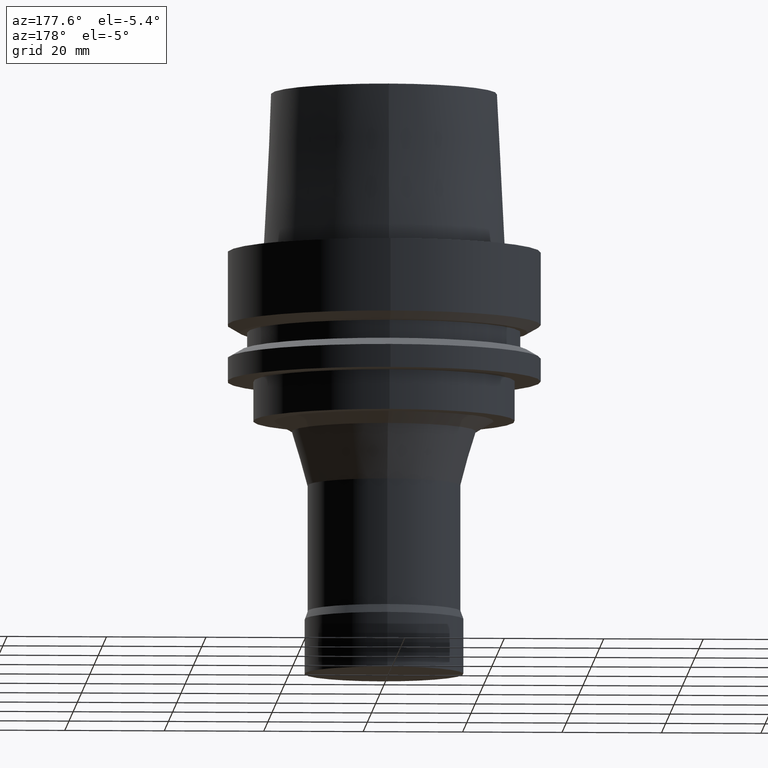
[diagram: clean part render]
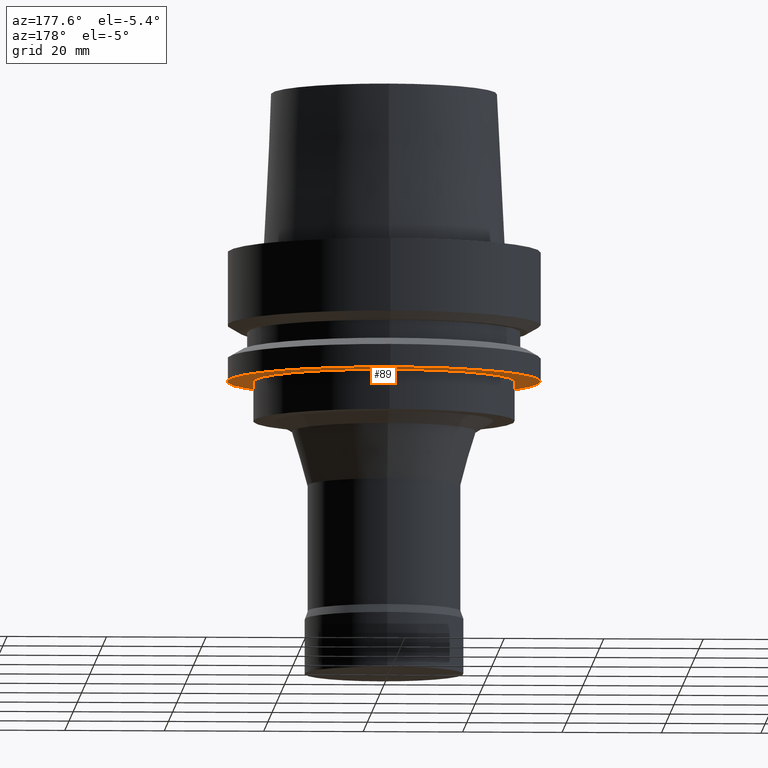
[diagram: same view with one face highlighted and labeled with its STEP entity id]
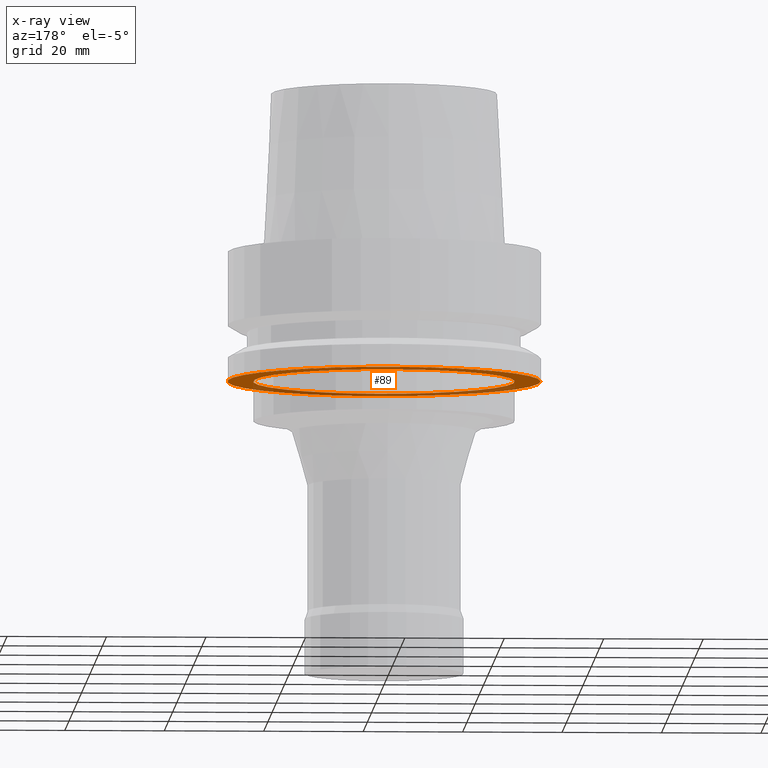
[diagram: x-ray of the same camera — body ghosted, the highlighted face saturated]
A machine part, auxiliary view. The second image highlights one B-rep face of the part: STEP entity #89.
The next image is the same camera in x-ray: the body ghosted, the highlighted face saturated — about 36% of this face is hidden behind the body in this view.
In plain terms, the highlighted planar face has unit normal (0, 0, -1).
Its self-contained STEP definition (entity closure, byte-faithful):
#89=ADVANCED_FACE('',(#136,#137),#138,.T.);
#136=FACE_BOUND('',#191,.T.);
#137=FACE_OUTER_BOUND('',#192,.T.);
#138=PLANE('',#193);
#191=EDGE_LOOP('',(#274));
#192=EDGE_LOOP('',(#275));
#193=AXIS2_PLACEMENT_3D('',#276,#277,#278);
#274=ORIENTED_EDGE('',*,*,#313,.F.);
#275=ORIENTED_EDGE('',*,*,#312,.T.);
#276=CARTESIAN_POINT('',(1.59204083889156E-015,28.9,-26.0));
#277=DIRECTION('',(6.12323399573677E-017,1.22464679914735E-016,-1.0));
#278=DIRECTION('',(-1.23259516440783E-032,1.0,1.22464679914735E-016));
#312=EDGE_CURVE('',#344,#344,#345,.T.);
#313=EDGE_CURVE('',#346,#346,#347,.T.);
#344=VERTEX_POINT('',#380);
#345=CIRCLE('',#381,31.5);
#346=VERTEX_POINT('',#382);
#347=CIRCLE('',#383,26.3);
#380=CARTESIAN_POINT('',(1.59204083889156E-015,31.5,-26.0));
#381=AXIS2_PLACEMENT_3D('',#430,#431,#432);
#382=CARTESIAN_POINT('',(1.59204083889156E-015,26.3,-26.0));
#383=AXIS2_PLACEMENT_3D('',#433,#434,#435);
#430=CARTESIAN_POINT('',(1.59204083889156E-015,3.18408167778312E-015,-26.0));
#431=DIRECTION('',(6.12323399573677E-017,1.22464679914735E-016,-1.0));
#432=DIRECTION('',(-1.23259516440783E-032,1.0,1.22464679914735E-016));
#433=CARTESIAN_POINT('',(1.59204083889156E-015,3.18408167778312E-015,-26.0));
#434=DIRECTION('',(6.12323399573677E-017,1.22464679914735E-016,-1.0));
#435=DIRECTION('',(-1.23259516440783E-032,1.0,1.22464679914735E-016));